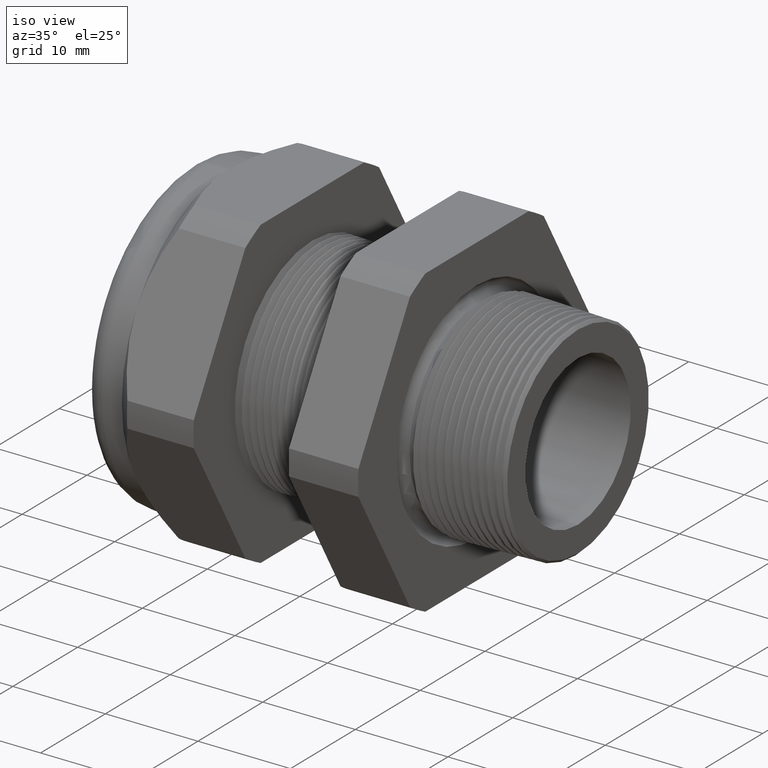
[diagram: clean part render]
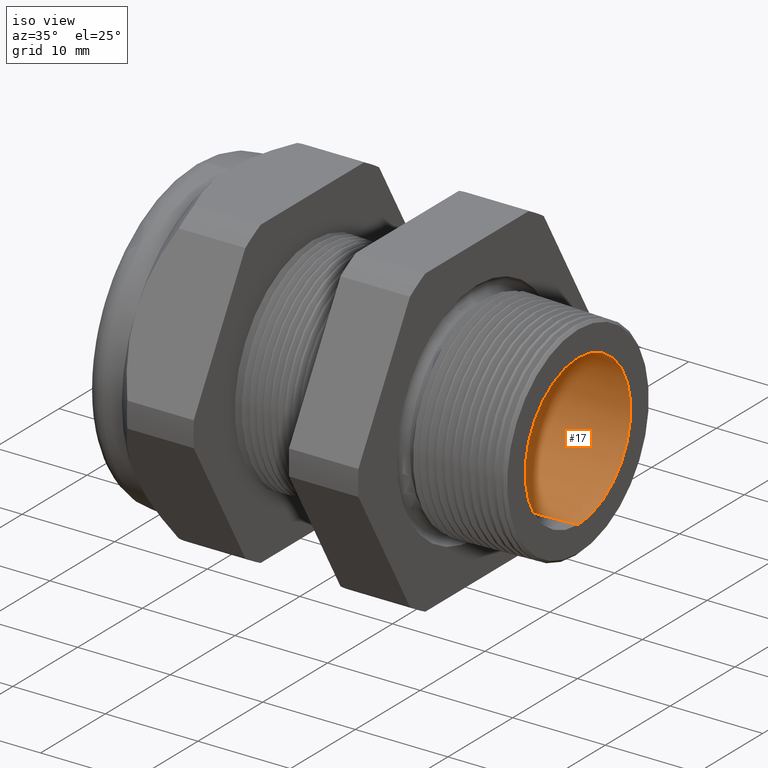
[diagram: same view with one face highlighted and labeled with its STEP entity id]
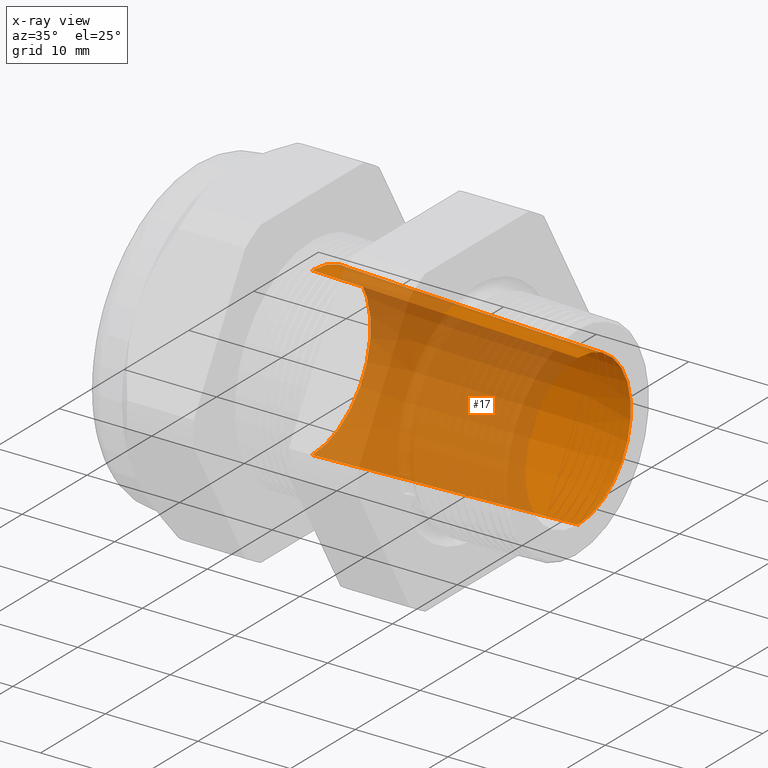
[diagram: x-ray of the same camera — body ghosted, the highlighted face saturated]
A machine part, iso view. The second image highlights one B-rep face of the part: STEP entity #17.
The next image is the same camera in x-ray: the body ghosted, the highlighted face saturated — about 69% of this face is hidden behind the body in this view.
In plain terms, the highlighted conical surface has half-angle 1.753 deg.
Its self-contained STEP definition (entity closure, byte-faithful):
#13 = ORIENTED_EDGE ( 'NONE', *, *, #1341, .F. ) ;
#14 = EDGE_LOOP ( 'NONE', ( #13, #2625, #2619, #2615 ) ) ;
#17 = ADVANCED_FACE ( 'NONE', ( #1701 ), #1700, .F. ) ;
#303 = EDGE_CURVE ( 'NONE', #1343, #1380, #2230, .T. ) ;
#1335 = VERTEX_POINT ( 'NONE', #4184 ) ;
#1337 = VERTEX_POINT ( 'NONE', #4242 ) ;
#1341 = EDGE_CURVE ( 'NONE', #1337, #1343, #4240, .T. ) ;
#1343 = VERTEX_POINT ( 'NONE', #4232 ) ;
#1380 = VERTEX_POINT ( 'NONE', #4288 ) ;
#1382 = EDGE_CURVE ( 'NONE', #1335, #1380, #4287, .T. ) ;
#1695 = DIRECTION ( 'NONE',  ( 0.0000000000000000000, 0.0000000000000000000, 1.000000000000000000 ) ) ;
#1696 = DIRECTION ( 'NONE',  ( -1.000000000000000000, 0.0000000000000000000, 0.0000000000000000000 ) ) ;
#1697 = CARTESIAN_POINT ( 'NONE',  ( -1.010314960629921100, 0.0000000000000000000, 0.0000000000000000000 ) ) ;
#1698 = AXIS2_PLACEMENT_3D ( 'NONE', #1697, #1696, #1695 ) ;
#1700 = CONICAL_SURFACE ( 'NONE', #1698, 0.3549999999999999800, 0.03059991300296905500 ) ;
#1701 = FACE_OUTER_BOUND ( 'NONE', #14, .T. ) ;
#2226 = DIRECTION ( 'NONE',  ( 0.0000000000000000000, 0.0000000000000000000, -1.000000000000000000 ) ) ;
#2227 = DIRECTION ( 'NONE',  ( 1.000000000000000000, 0.0000000000000000000, 0.0000000000000000000 ) ) ;
#2228 = CARTESIAN_POINT ( 'NONE',  ( -1.010314960629921100, 0.0000000000000000000, 0.0000000000000000000 ) ) ;
#2229 = AXIS2_PLACEMENT_3D ( 'NONE', #2228, #2227, #2226 ) ;
#2230 = CIRCLE ( 'NONE', #2229, 0.3549999999999999800 ) ;
#2615 = ORIENTED_EDGE ( 'NONE', *, *, #303, .F. ) ;
#2619 = ORIENTED_EDGE ( 'NONE', *, *, #1382, .T. ) ;
#2623 = EDGE_CURVE ( 'NONE', #1337, #1335, #4867, .T. ) ;
#2625 = ORIENTED_EDGE ( 'NONE', *, *, #2623, .T. ) ;
#4184 = CARTESIAN_POINT ( 'NONE',  ( 0.1200000000000000200, 0.0000000000000000000, 0.3204016610924743100 ) ) ;
#4232 = CARTESIAN_POINT ( 'NONE',  ( -1.010314960629921100, 0.0000000000000000000, -0.3549999999999999800 ) ) ;
#4237 = DIRECTION ( 'NONE',  ( -0.9995318591926351000, 3.746823761453372400E-018, -0.03059513783126741000 ) ) ;
#4238 = VECTOR ( 'NONE', #4237, 39.37007874015748900 ) ;
#4239 = CARTESIAN_POINT ( 'NONE',  ( -1.010314960629921100, 4.347496136973103500E-017, -0.3549999999999999800 ) ) ;
#4240 = LINE ( 'NONE', #4239, #4238 ) ;
#4242 = CARTESIAN_POINT ( 'NONE',  ( 0.1200000000000000200, 4.135642411978520400E-017, -0.3204016610924743100 ) ) ;
#4284 = DIRECTION ( 'NONE',  ( -0.9995318591926351000, 0.0000000000000000000, 0.03059513783126741000 ) ) ;
#4285 = VECTOR ( 'NONE', #4284, 39.37007874015748900 ) ;
#4286 = CARTESIAN_POINT ( 'NONE',  ( -1.010314960629921100, 0.0000000000000000000, 0.3549999999999999800 ) ) ;
#4287 = LINE ( 'NONE', #4286, #4285 ) ;
#4288 = CARTESIAN_POINT ( 'NONE',  ( -1.010314960629921100, 4.347496136973103500E-017, 0.3549999999999999800 ) ) ;
#4863 = DIRECTION ( 'NONE',  ( 0.0000000000000000000, 0.0000000000000000000, -1.000000000000000000 ) ) ;
#4864 = DIRECTION ( 'NONE',  ( 1.000000000000000000, 0.0000000000000000000, 0.0000000000000000000 ) ) ;
#4865 = CARTESIAN_POINT ( 'NONE',  ( 0.1200000000000000200, 0.0000000000000000000, 0.0000000000000000000 ) ) ;
#4866 = AXIS2_PLACEMENT_3D ( 'NONE', #4865, #4864, #4863 ) ;
#4867 = CIRCLE ( 'NONE', #4866, 0.3204016610924743100 ) ;